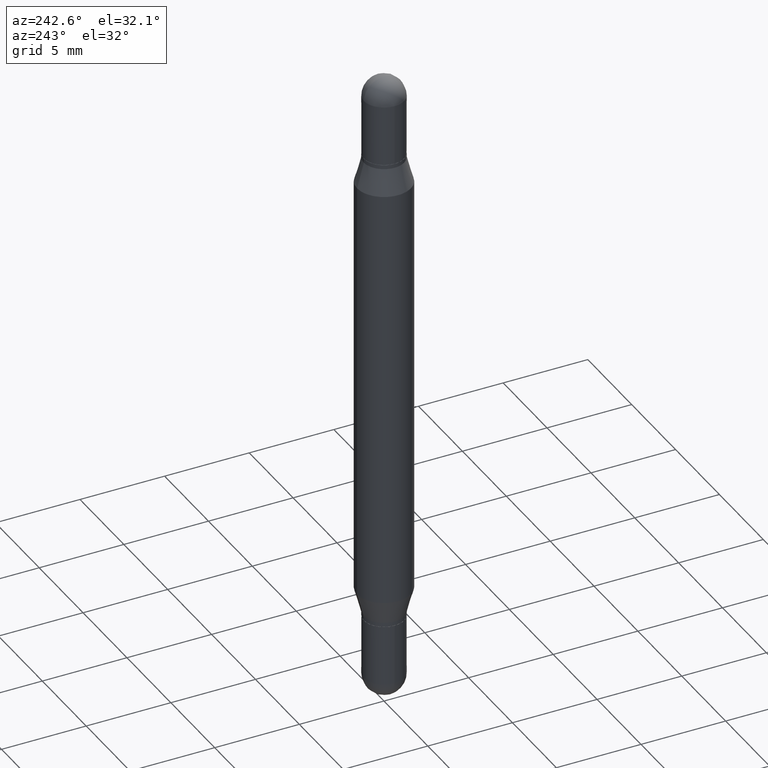
[diagram: clean part render]
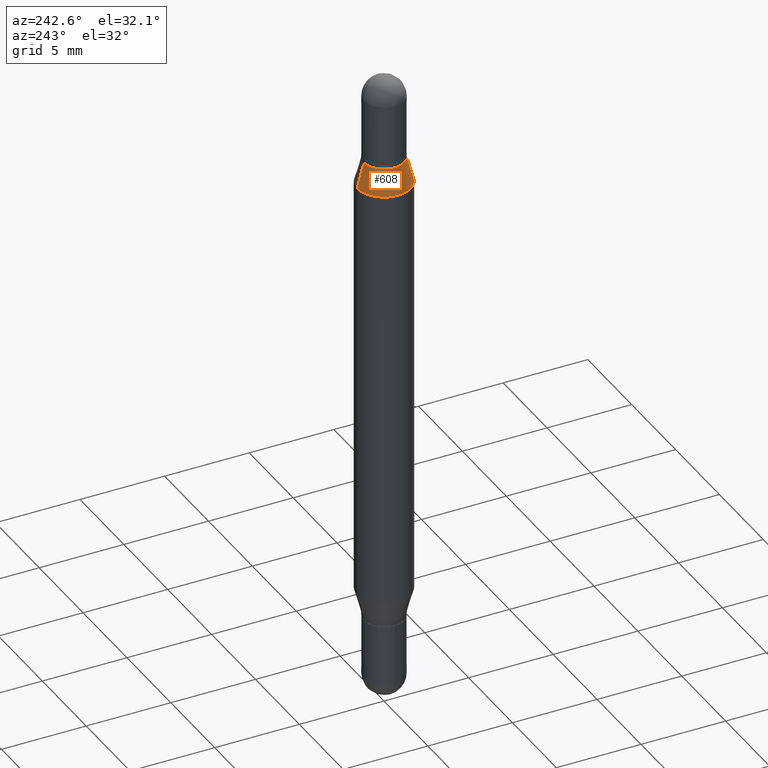
[diagram: same view with one face highlighted and labeled with its STEP entity id]
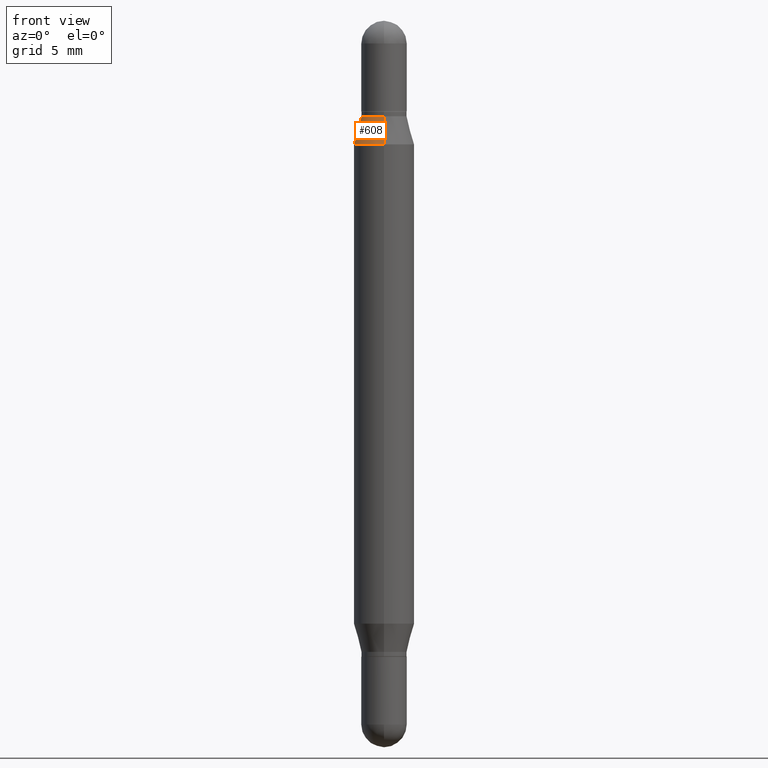
[diagram: same view with one face highlighted and labeled with its STEP entity id]
A machine part, auxiliary view. The second image highlights one B-rep face of the part: STEP entity #608.
A second angle (front view) of the same face is appended — the face is thin or edge-on in the first view.
In plain terms, the highlighted conical surface has half-angle 15 deg.
Its self-contained STEP definition (entity closure, byte-faithful):
#71 = LINE ( 'NONE', #1089, #767 ) ;
#82 = DIRECTION ( 'NONE',  ( 2.445640986217375071E-29, 3.479861038583872715E-15, 1.000000000000000000 ) ) ;
#165 = EDGE_CURVE ( 'NONE', #999, #648, #328, .T. ) ;
#265 = EDGE_LOOP ( 'NONE', ( #774, #531, #325, #1026 ) ) ;
#316 = CARTESIAN_POINT ( 'NONE',  ( 3.186670205041240929E-29, -6.940629210909444881E-16, -0.1970000000000001195 ) ) ;
#325 = ORIENTED_EDGE ( 'NONE', *, *, #165, .T. ) ;
#328 = CIRCLE ( 'NONE', #778, 0.06250000000000000000 ) ;
#331 = CIRCLE ( 'NONE', #904, 0.04689999999999964336 ) ;
#449 = DIRECTION ( 'NONE',  ( 2.445640986217375071E-29, 3.479861038583872715E-15, 1.000000000000000000 ) ) ;
#456 = CARTESIAN_POINT ( 'NONE',  ( 3.217573560955141730E-16, 0.04689999999999894947, -0.1970000000000002860 ) ) ;
#495 = CARTESIAN_POINT ( 'NONE',  ( 3.217573560955143209E-16, 0.04689999999999894947, -0.1970000000000002860 ) ) ;
#518 = VERTEX_POINT ( 'NONE', #495 ) ;
#531 = ORIENTED_EDGE ( 'NONE', *, *, #894, .T. ) ;
#555 = DIRECTION ( 'NONE',  ( -1.807323732225328562E-15, -0.2588190451025247363, -0.9659258262890673130 ) ) ;
#570 = VERTEX_POINT ( 'NONE', #902 ) ;
#591 = CARTESIAN_POINT ( 'NONE',  ( 3.044285004926114619E-29, -8.966604049996300104E-16, -0.2552199925980758177 ) ) ;
#608 = ADVANCED_FACE ( 'NONE', ( #909 ), #691, .T. ) ;
#648 = VERTEX_POINT ( 'NONE', #848 ) ;
#662 = DIRECTION ( 'NONE',  ( -2.445640986217375071E-29, -3.479861038583872715E-15, -1.000000000000000000 ) ) ;
#665 = CARTESIAN_POINT ( 'NONE',  ( 4.287811248607510938E-16, 0.06249999999999910488, -0.2552199925980759843 ) ) ;
#691 = CONICAL_SURFACE ( 'NONE', #707, 0.04689999999999964336, 0.2617993877991500740 ) ;
#707 = AXIS2_PLACEMENT_3D ( 'NONE', #316, #662, #1008 ) ;
#767 = VECTOR ( 'NONE', #555, 39.37007874015748854 ) ;
#774 = ORIENTED_EDGE ( 'NONE', *, *, #850, .F. ) ;
#778 = AXIS2_PLACEMENT_3D ( 'NONE', #591, #82, #1047 ) ;
#848 = CARTESIAN_POINT ( 'NONE',  ( -4.364351673553612490E-16, -0.06250000000000090206, -0.2552199925980755957 ) ) ;
#850 = EDGE_CURVE ( 'NONE', #518, #570, #331, .T. ) ;
#891 = DIRECTION ( 'NONE',  ( -6.982962677686265133E-15, -1.000000000000000000, 3.640522379616583431E-15 ) ) ;
#894 = EDGE_CURVE ( 'NONE', #518, #999, #1055, .T. ) ;
#902 = CARTESIAN_POINT ( 'NONE',  ( -3.275009495834514884E-16, -0.04690000000000033031, -0.1969999999999999529 ) ) ;
#904 = AXIS2_PLACEMENT_3D ( 'NONE', #1064, #449, #891 ) ;
#909 = FACE_OUTER_BOUND ( 'NONE', #265, .T. ) ;
#969 = DIRECTION ( 'NONE',  ( 1.775627540710963525E-15, 0.2588190451025179639, -0.9659258262890690894 ) ) ;
#999 = VERTEX_POINT ( 'NONE', #665 ) ;
#1008 = DIRECTION ( 'NONE',  ( -6.982962677686265133E-15, -1.000000000000000000, 3.640522379616583431E-15 ) ) ;
#1018 = EDGE_CURVE ( 'NONE', #570, #648, #71, .T. ) ;
#1026 = ORIENTED_EDGE ( 'NONE', *, *, #1018, .F. ) ;
#1047 = DIRECTION ( 'NONE',  ( -6.982962677686265922E-15, -1.000000000000000000, 3.278217592397115862E-15 ) ) ;
#1055 = LINE ( 'NONE', #456, #1110 ) ;
#1064 = CARTESIAN_POINT ( 'NONE',  ( 3.186670205041240929E-29, -6.940629210909444881E-16, -0.1970000000000001195 ) ) ;
#1089 = CARTESIAN_POINT ( 'NONE',  ( -3.275009495834514884E-16, -0.04690000000000033031, -0.1969999999999999529 ) ) ;
#1110 = VECTOR ( 'NONE', #969, 39.37007874015748854 ) ;